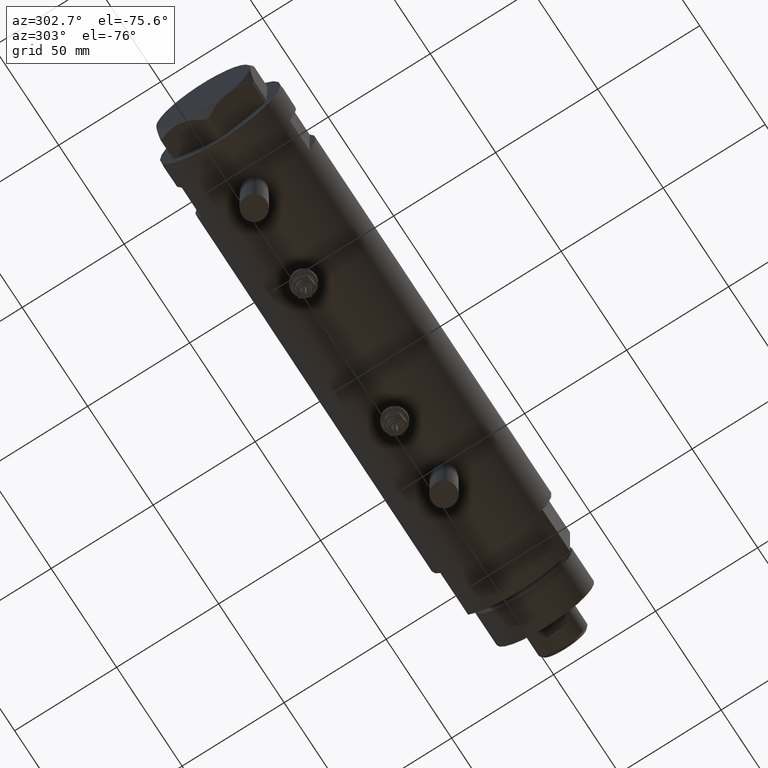
[diagram: clean part render]
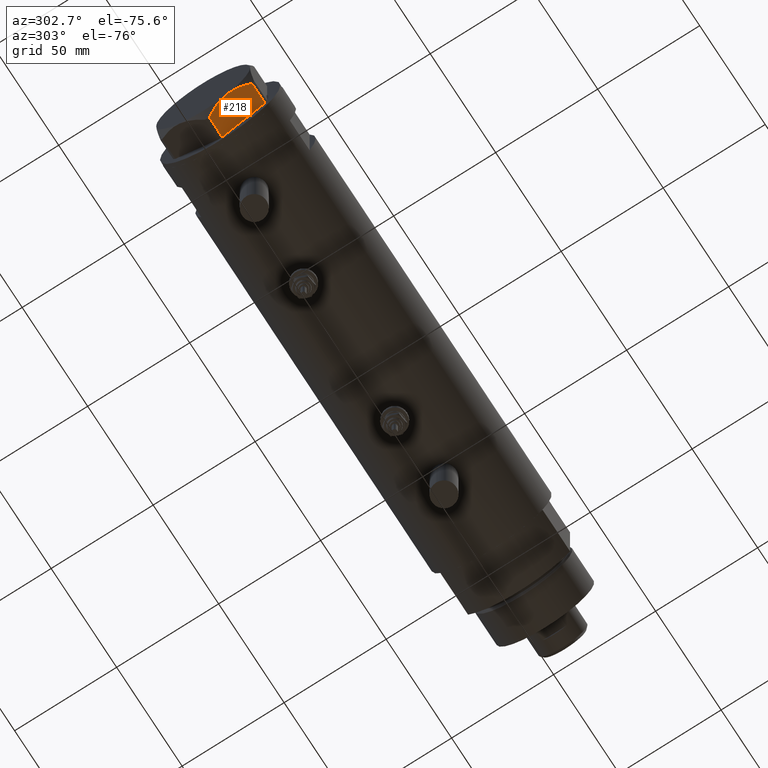
[diagram: same view with one face highlighted and labeled with its STEP entity id]
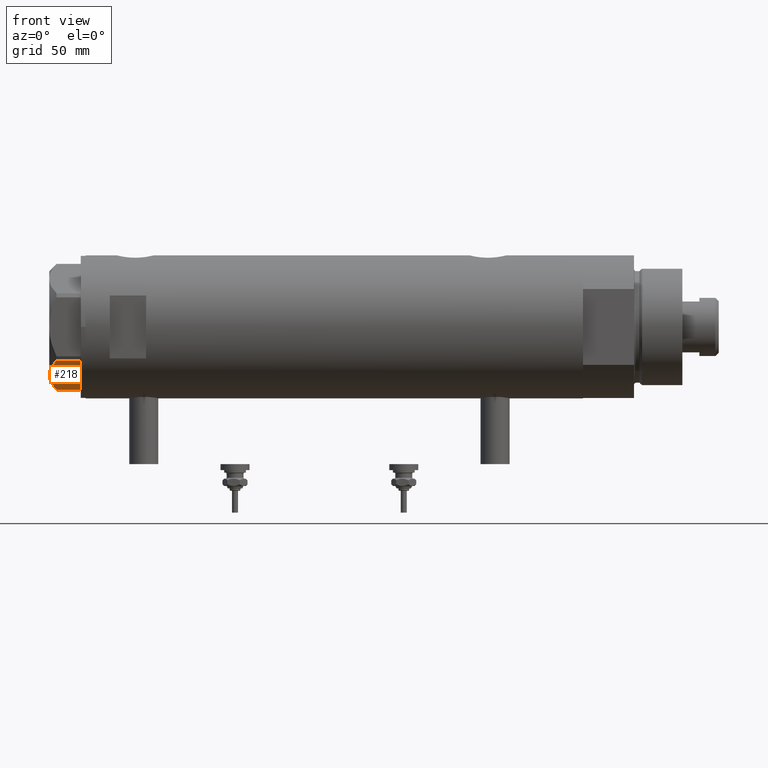
[diagram: same view with one face highlighted and labeled with its STEP entity id]
A machine part, auxiliary view. The second image highlights one B-rep face of the part: STEP entity #218.
A second angle (front view) of the same face is appended — the face is thin or edge-on in the first view.
In plain terms, the highlighted planar face has unit normal (0, 0.5, 0.866).
Its self-contained STEP definition (entity closure, byte-faithful):
#124 = CARTESIAN_POINT ( 'NONE',  ( -11.50000000000004441, 19.91858428704211548, 13.00000000000000000 ) ) ;
#149 = ORIENTED_EDGE ( 'NONE', *, *, #3128, .T. ) ;
#150 = CARTESIAN_POINT ( 'NONE',  ( -0.9699484522384476115, 25.99811238272281599, 9.983800287807556018 ) ) ;
#218 = ADVANCED_FACE ( 'NONE', ( #4151 ), #3286, .F. ) ;
#317 = CARTESIAN_POINT ( 'NONE',  ( -22.03005154776142760, 13.83905619136132259, 9.983800287807632401 ) ) ;
#358 = LINE ( 'NONE', #5023, #463 ) ;
#463 = VECTOR ( 'NONE', #4446, 1000.000000000000000 ) ;
#514 = EDGE_CURVE ( 'NONE', #3551, #4728, #358, .T. ) ;
#679 = CARTESIAN_POINT ( 'NONE',  ( -22.03005154776142760, 13.83905619136132259, 9.983800287807632401 ) ) ;
#1112 = DIRECTION ( 'NONE',  ( -0.8660254037844380415, -0.5000000000000008882, 0.000000000000000000 ) ) ;
#1128 = CARTESIAN_POINT ( 'NONE',  ( -11.50000000000004441, 19.91858428704211548, 13.00000000000000000 ) ) ;
#1175 = CARTESIAN_POINT ( 'NONE',  ( -0.9699484522385893870, 25.99811238272273073, 0.000000000000000000 ) ) ;
#1489 = CARTESIAN_POINT ( 'NONE',  ( 0.000000000000000000, 26.55811238272274366, 13.00000000000000000 ) ) ;
#1574 = CARTESIAN_POINT ( 'NONE',  ( -2.626494320835643048, 25.04170517956326236, 10.87778242614345814 ) ) ;
#1848 = DIRECTION ( 'NONE',  ( 0.8660254037844381525, 0.5000000000000008882, 0.000000000000000000 ) ) ;
#1873 = ORIENTED_EDGE ( 'NONE', *, *, #5188, .F. ) ;
#1917 = EDGE_LOOP ( 'NONE', ( #149, #3680, #1873, #2349, #3982 ) ) ;
#1931 = CARTESIAN_POINT ( 'NONE',  ( -0.9699484522384476115, 25.99811238272281599, 9.983800287807556018 ) ) ;
#2157 = CARTESIAN_POINT ( 'NONE',  ( -15.11535457301031649, 17.83125835109857249, 12.70765172847700519 ) ) ;
#2349 = ORIENTED_EDGE ( 'NONE', *, *, #3970, .F. ) ;
#2523 = CARTESIAN_POINT ( 'NONE',  ( -19.07486218896993790, 15.54523556316591915, 11.39727285399141898 ) ) ;
#2546 = CARTESIAN_POINT ( 'NONE',  ( -17.77001848220189828, 16.29858742851882525, 11.89212886775844424 ) ) ;
#2608 = CARTESIAN_POINT ( 'NONE',  ( -13.32175508098984018, 18.86679350063497296, 13.00000000000009237 ) ) ;
#2618 = LINE ( 'NONE', #3845, #3193 ) ;
#2803 = EDGE_CURVE ( 'NONE', #4529, #4598, #2618, .T. ) ;
#2809 = CARTESIAN_POINT ( 'NONE',  ( -4.320186229909891651, 24.06385169993495055, 11.62937486882611005 ) ) ;
#2931 = CARTESIAN_POINT ( 'NONE',  ( -11.50000000000004441, 19.91858428704211548, 13.00000000000000000 ) ) ;
#2937 = LINE ( 'NONE', #5220, #4643 ) ;
#3119 = AXIS2_PLACEMENT_3D ( 'NONE', #1489, #4604, #1848 ) ;
#3128 = EDGE_CURVE ( 'NONE', #4728, #4529, #2937, .T. ) ;
#3193 = VECTOR ( 'NONE', #5411, 1000.000000000000000 ) ;
#3286 = PLANE ( 'NONE',  #3119 ) ;
#3305 = CARTESIAN_POINT ( 'NONE',  ( -9.656518383329851574, 20.98291889467267879, 12.90784227772844162 ) ) ;
#3551 = VERTEX_POINT ( 'NONE', #1931 ) ;
#3680 = ORIENTED_EDGE ( 'NONE', *, *, #2803, .T. ) ;
#3782 = CARTESIAN_POINT ( 'NONE',  ( -6.946777556903628970, 22.54738849024396075, 12.42689993760377831 ) ) ;
#3845 = CARTESIAN_POINT ( 'NONE',  ( -22.03005154776142049, 13.83905619136132614, 13.00000000000000000 ) ) ;
#3970 = EDGE_CURVE ( 'NONE', #3551, #5413, #4193, .T. ) ;
#3982 = ORIENTED_EDGE ( 'NONE', *, *, #514, .T. ) ;
#4151 = FACE_OUTER_BOUND ( 'NONE', #1917, .T. ) ;
#4193 = B_SPLINE_CURVE_WITH_KNOTS ( 'NONE', 3,
 ( #150, #1574, #2809, #3782, #4653, #4304, #3305, #5208, #5146, #1128 ),
 .UNSPECIFIED., .F., .F.,
 ( 4, 2, 2, 2, 4 ),
 ( 0.001228959670438532553, 0.007497079744270828371, 0.01063113978118697921, 0.01219816979964505159, 0.01376519981810312397 ),
 .UNSPECIFIED. ) ;
#4304 = CARTESIAN_POINT ( 'NONE',  ( -9.197898616902921987, 21.24770314027493612, 12.85271263895580596 ) ) ;
#4314 = CARTESIAN_POINT ( 'NONE',  ( -18.64279229058393739, 15.79469123530780372, 11.57055225522972286 ) ) ;
#4359 = CARTESIAN_POINT ( 'NONE',  ( -20.35958612119325650, 14.80349985506242838, 10.84420102443839085 ) ) ;
#4446 = DIRECTION ( 'NONE',  ( 0.000000000000000000, 0.000000000000000000, -1.000000000000000000 ) ) ;
#4529 = VERTEX_POINT ( 'NONE', #5222 ) ;
#4598 = VERTEX_POINT ( 'NONE', #317 ) ;
#4604 = DIRECTION ( 'NONE',  ( 0.5000000000000008882, -0.8660254037844381525, 0.000000000000000000 ) ) ;
#4643 = VECTOR ( 'NONE', #1112, 1000.000000000000227 ) ;
#4653 = CARTESIAN_POINT ( 'NONE',  ( -7.836767740116584058, 22.03355241838984924, 12.63731396715694899 ) ) ;
#4728 = VERTEX_POINT ( 'NONE', #1175 ) ;
#4750 = CARTESIAN_POINT ( 'NONE',  ( -21.20080365460317751, 14.31782268570117367, 10.43131750950939818 ) ) ;
#4839 = B_SPLINE_CURVE_WITH_KNOTS ( 'NONE', 3,
 ( #2931, #2608, #2157, #5681, #2546, #4314, #2523, #4359, #4750, #679 ),
 .UNSPECIFIED., .F., .F.,
 ( 4, 2, 2, 2, 4 ),
 ( 0.01376519981810312397, 0.01998941321701587850, 0.02154546656674406757, 0.02310151991647225664, 0.02621362661592864171 ),
 .UNSPECIFIED. ) ;
#5023 = CARTESIAN_POINT ( 'NONE',  ( -0.9699484522385897201, 25.99811238272273073, 13.00000000000000000 ) ) ;
#5146 = CARTESIAN_POINT ( 'NONE',  ( -11.04134848610939557, 20.18338686205100885, 13.00000000000010125 ) ) ;
#5188 = EDGE_CURVE ( 'NONE', #5413, #4598, #4839, .T. ) ;
#5208 = CARTESIAN_POINT ( 'NONE',  ( -10.58093321976963175, 20.44920774001128194, 12.98168640760950510 ) ) ;
#5220 = CARTESIAN_POINT ( 'NONE',  ( 0.000000000000000000, 26.55811238272274366, 0.000000000000000000 ) ) ;
#5222 = CARTESIAN_POINT ( 'NONE',  ( -22.03005154776141339, 13.83905619136132792, 0.000000000000000000 ) ) ;
#5411 = DIRECTION ( 'NONE',  ( 0.000000000000000000, 0.000000000000000000, 1.000000000000000000 ) ) ;
#5413 = VERTEX_POINT ( 'NONE', #124 ) ;
#5681 = CARTESIAN_POINT ( 'NONE',  ( -17.32831362639716843, 16.55360584592005679, 12.04068176582934235 ) ) ;